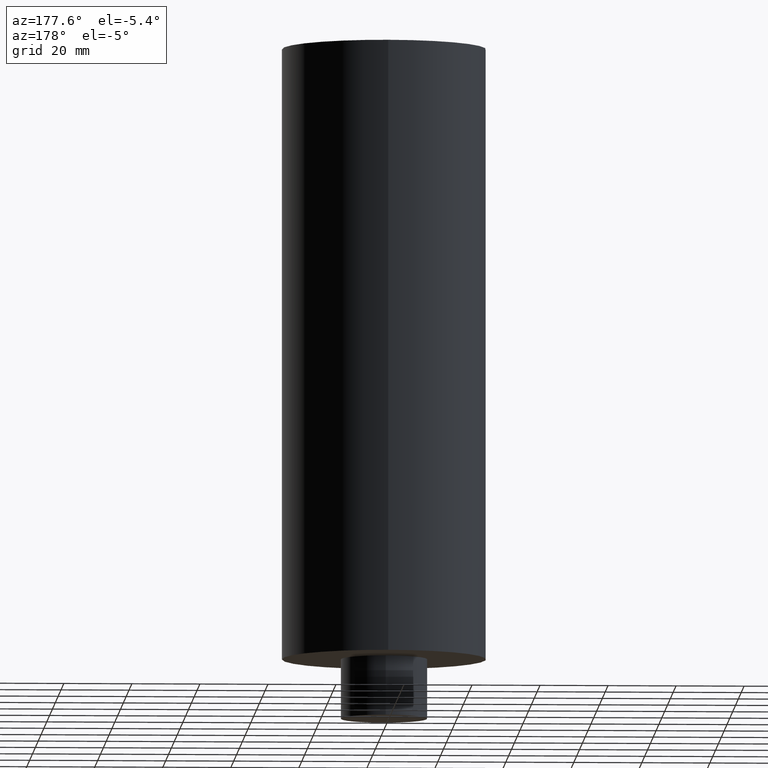
[diagram: clean part render]
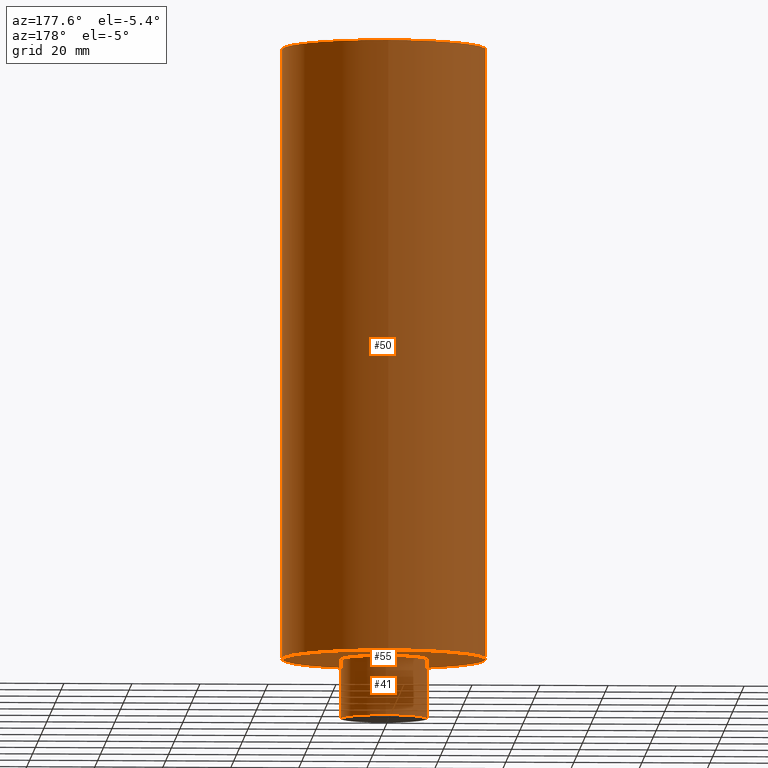
[diagram: same view with one multi-face feature highlighted, each face labeled with its STEP entity id]
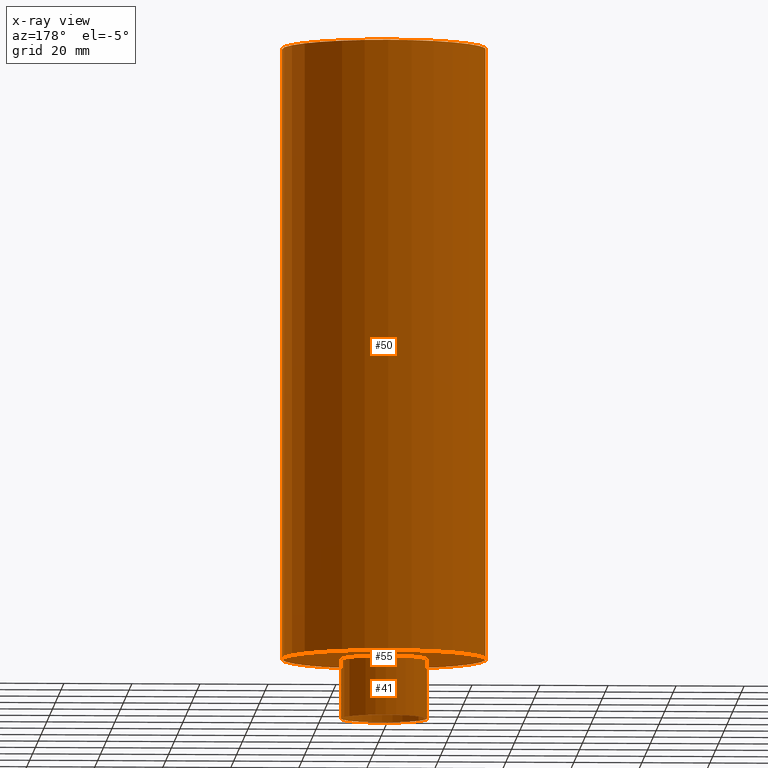
[diagram: x-ray of the same camera — body ghosted, the whole feature saturated]
A machine part, auxiliary view. The highlighted faces form ONE feature: a stepped (counterbored) hole: 2 coaxial cylindrical walls of radii 12.7 -> 30 mm joined by 1 annular planar shoulder face(s). The faces share edges in the B-rep.
The next image is the same camera in x-ray: the body ghosted and the whole hole feature saturated, so the bore chain is visible through the body.
Their STEP definitions:
[1] entity #50 (Cylinder):
#43=EDGE_CURVE('Unnamed[1]',#89,#89,#90,.T.);
#47=EDGE_CURVE('Unnamed[1]',#95,#95,#96,.T.);
#50=ADVANCED_FACE('Unnamed[1]',(#99,#100),#101,.T.);
#89=VERTEX_POINT('',#137);
#90=CIRCLE('',#138,30.0);
#95=VERTEX_POINT('',#145);
#96=CIRCLE('',#146,30.0);
#99=FACE_BOUND('',#150,.T.);
#100=FACE_BOUND('',#151,.T.);
#101=CYLINDRICAL_SURFACE('',#152,30.0);
#137=CARTESIAN_POINT('',(1.37054922468967E-030,30.0,-2.47477690329619E-014));
#138=AXIS2_PLACEMENT_3D('',#183,#184,#185);
#145=CARTESIAN_POINT('',(1.10218211923262E-014,30.0,-180.000000000001));
#146=AXIS2_PLACEMENT_3D('',#189,#190,#191);
#150=EDGE_LOOP('',(#193));
#151=EDGE_LOOP('',(#194));
#152=AXIS2_PLACEMENT_3D('',#195,#196,#197);
#183=CARTESIAN_POINT('',(1.74032777401202E-030,3.48065554802404E-030,-2.8421709430404E-014));
#184=DIRECTION('',(-6.12323399573677E-017,-1.22464679914747E-016,1.0));
#185=DIRECTION('',(-1.23259516440783E-032,1.0,1.22464679914747E-016));
#189=CARTESIAN_POINT('',(1.10218211923262E-014,2.20436423846524E-014,-180.000000000001));
#190=DIRECTION('',(-6.12323399573677E-017,-1.22464679914747E-016,1.0));
#191=DIRECTION('',(-1.23259516440783E-032,1.0,1.22464679914747E-016));
#193=ORIENTED_EDGE('',*,*,#43,.F.);
#194=ORIENTED_EDGE('',*,*,#47,.T.);
#195=CARTESIAN_POINT('',(5.51091059616311E-015,1.10218211923262E-014,-90.0000000000003));
#196=DIRECTION('',(-6.12323399573677E-017,-1.22464679914747E-016,1.0));
#197=DIRECTION('',(-1.23259516440783E-032,1.0,1.22464679914747E-016));
[2] entity #41 (Cylinder):
#41=ADVANCED_FACE('Unnamed[1]',(#85,#86),#87,.T.);
#45=EDGE_CURVE('Unnamed[1]',#92,#92,#93,.T.);
#52=EDGE_CURVE('Unnamed[1]',#103,#103,#104,.T.);
#85=FACE_BOUND('',#132,.T.);
#86=FACE_BOUND('',#133,.T.);
#87=CYLINDRICAL_SURFACE('',#134,12.7);
#92=VERTEX_POINT('',#141);
#93=CIRCLE('',#142,12.7);
#103=VERTEX_POINT('',#155);
#104=CIRCLE('',#156,12.7);
#132=EDGE_LOOP('',(#178));
#133=EDGE_LOOP('',(#179));
#134=AXIS2_PLACEMENT_3D('',#180,#181,#182);
#141=CARTESIAN_POINT('',(1.20933871415801E-014,12.7,-197.5));
#142=AXIS2_PLACEMENT_3D('',#186,#187,#188);
#155=CARTESIAN_POINT('',(1.10218211923262E-014,12.7,-180.0));
#156=AXIS2_PLACEMENT_3D('',#198,#199,#200);
#178=ORIENTED_EDGE('',*,*,#52,.F.);
#179=ORIENTED_EDGE('',*,*,#45,.T.);
#180=CARTESIAN_POINT('',(1.15576041669532E-014,2.31152083339063E-014,-188.75));
#181=DIRECTION('',(-6.12323399573677E-017,-1.2246467991474E-016,1.0));
#182=DIRECTION('',(-1.2325951644079E-032,1.0,1.2246467991474E-016));
#186=CARTESIAN_POINT('',(1.20933871415801E-014,2.41867742831602E-014,-197.5));
#187=DIRECTION('',(-6.12323399573677E-017,-1.2246467991474E-016,1.0));
#188=DIRECTION('',(-1.2325951644079E-032,1.0,1.2246467991474E-016));
#198=CARTESIAN_POINT('',(1.10218211923262E-014,2.20436423846524E-014,-180.0));
#199=DIRECTION('',(-6.12323399573677E-017,-1.2246467991474E-016,1.0));
#200=DIRECTION('',(-1.2325951644079E-032,1.0,1.2246467991474E-016));
[3] entity #55 (Plane):
#47=EDGE_CURVE('Unnamed[1]',#95,#95,#96,.T.);
#52=EDGE_CURVE('Unnamed[1]',#103,#103,#104,.T.);
#55=ADVANCED_FACE('Unnamed[1]',(#107,#108),#109,.T.);
#95=VERTEX_POINT('',#145);
#96=CIRCLE('',#146,30.0);
#103=VERTEX_POINT('',#155);
#104=CIRCLE('',#156,12.7);
#107=FACE_OUTER_BOUND('',#160,.T.);
#108=FACE_BOUND('',#161,.T.);
#109=PLANE('',#162);
#145=CARTESIAN_POINT('',(1.10218211923262E-014,30.0,-180.000000000001));
#146=AXIS2_PLACEMENT_3D('',#189,#190,#191);
#155=CARTESIAN_POINT('',(1.10218211923262E-014,12.7,-180.0));
#156=AXIS2_PLACEMENT_3D('',#198,#199,#200);
#160=EDGE_LOOP('',(#202));
#161=EDGE_LOOP('',(#203));
#162=AXIS2_PLACEMENT_3D('',#204,#205,#206);
#189=CARTESIAN_POINT('',(1.10218211923262E-014,2.20436423846524E-014,-180.000000000001));
#190=DIRECTION('',(-6.12323399573677E-017,-1.22464679914747E-016,1.0));
#191=DIRECTION('',(-1.23259516440783E-032,1.0,1.22464679914747E-016));
#198=CARTESIAN_POINT('',(1.10218211923262E-014,2.20436423846524E-014,-180.0));
#199=DIRECTION('',(-6.12323399573677E-017,-1.2246467991474E-016,1.0));
#200=DIRECTION('',(-1.2325951644079E-032,1.0,1.2246467991474E-016));
#202=ORIENTED_EDGE('',*,*,#47,.F.);
#203=ORIENTED_EDGE('',*,*,#52,.T.);
#204=CARTESIAN_POINT('',(1.10218211923262E-014,21.35,-180.0));
#205=DIRECTION('',(6.12323399573677E-017,-2.28777626048053E-014,-1.0));
#206=DIRECTION('',(-1.39603178455062E-030,-1.0,2.28777626048053E-014));